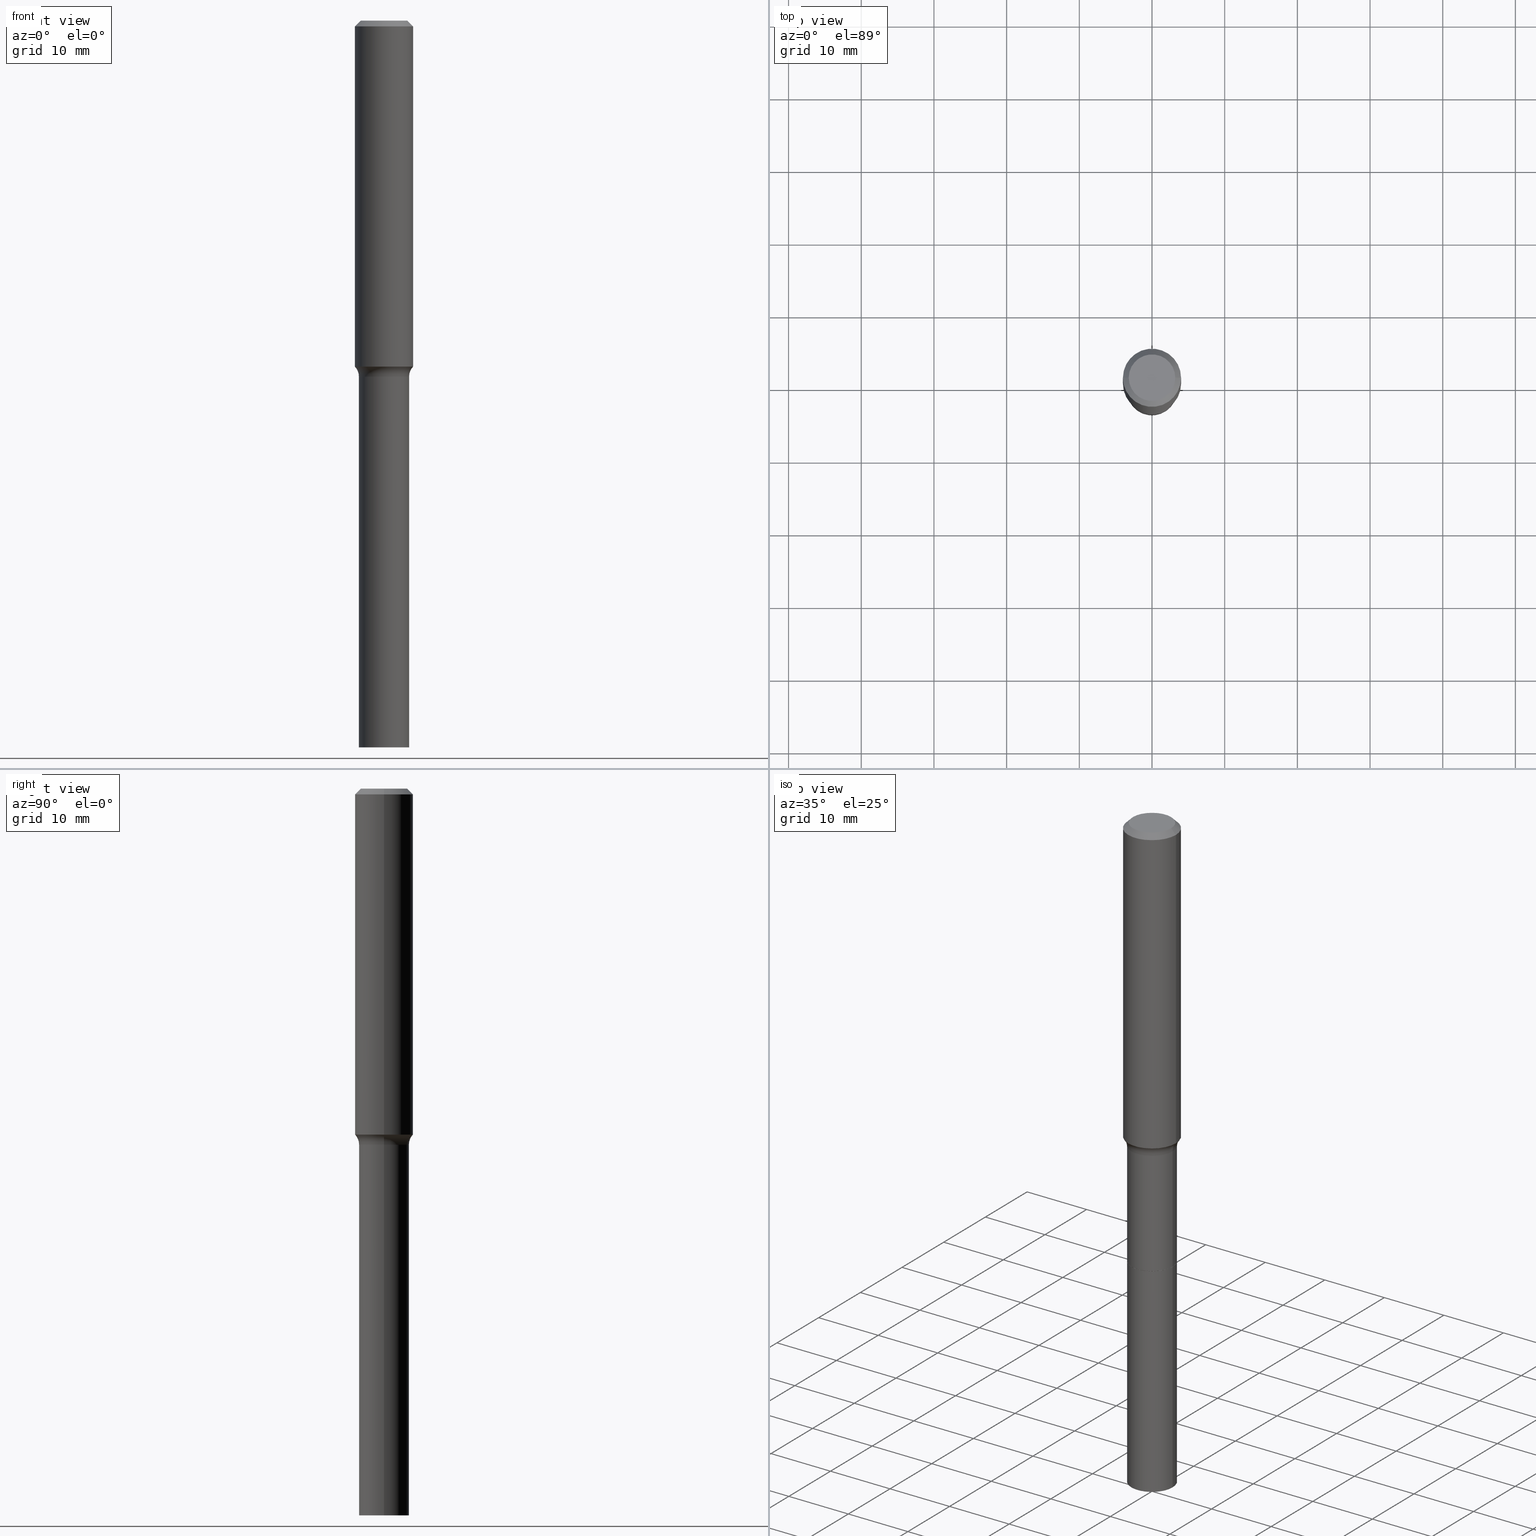
[diagram: canonical four-view strip — front | top / right | iso, engineering-drawing reading convention]
A machine part, canonical four-view strip (front | top / right | iso — engineering-drawing reading convention). The complete STEP part file that produces these views, byte-faithful:
ISO-10303-21;
HEADER;
FILE_DESCRIPTION (( 'STEP AP203' ),
    '1' );
FILE_NAME ('67856.STEP',
    '2025-04-01T15:31:43',
    ( '' ),
    ( '' ),
    'SwSTEP 2.0',
    'SolidWorks 2024',
    '' );
FILE_SCHEMA (( 'CONFIG_CONTROL_DESIGN' ));
ENDSEC;

DATA;
#1 = DIRECTION ( 'NONE',  ( 1.000000000000000000, 0.000000000000000000, 0.000000000000000000 ) ) ;
#2 = EDGE_LOOP ( 'NONE', ( #474, #445, #450, #211 ) ) ;
#3 = ORIENTED_EDGE ( 'NONE', *, *, #36, .F. ) ;
#4 = AXIS2_PLACEMENT_3D ( 'NONE', #124, #290, #285 ) ;
#5 = APPLICATION_CONTEXT ( 'configuration controlled 3d designs of mechanical parts and assemblies' ) ;
#6 = CONICAL_SURFACE ( 'NONE', #120, 0.1573417038704663373, 0.7504915783580670130 ) ;
#7 = ORIENTED_EDGE ( 'NONE', *, *, #435, .T. ) ;
#8 = CYLINDRICAL_SURFACE ( 'NONE', #76, 0.1358500000000001096 ) ;
#9 = CARTESIAN_POINT ( 'NONE',  ( 0.1358499999999999985, -1.008933362485503452E-14, -2.618000000000000327 ) ) ;
#10 = ADVANCED_FACE ( 'NONE', ( #48 ), #395, .T. ) ;
#11 = AXIS2_PLACEMENT_3D ( 'NONE', #331, #296, #359 ) ;
#12 = CARTESIAN_POINT ( 'NONE',  ( 6.402237334592687709E-29, -9.140698145091355562E-15, -2.618000000000000327 ) ) ;
#13 = APPROVAL_DATE_TIME ( #313, #483 ) ;
#14 = EDGE_LOOP ( 'NONE', ( #207, #245, #299, #488 ) ) ;
#15 = LOCAL_TIME ( 11, 31, 43.00000000000000000, #338 ) ;
#16 = FACE_OUTER_BOUND ( 'NONE', #405, .T. ) ;
#17 = EDGE_CURVE ( 'NONE', #291, #128, #329, .T. ) ;
#18 = DIRECTION ( 'NONE',  ( -2.445468806185136597E-29, 3.491481338843145583E-15, 1.000000000000000000 ) ) ;
#19 = EDGE_LOOP ( 'NONE', ( #118, #42, #401, #123 ) ) ;
#20 = CARTESIAN_POINT ( 'NONE',  ( 0.1575000000000002232, -7.643796675283027405E-15, -1.874270379378770057 ) ) ;
#21 = CARTESIAN_POINT ( 'NONE',  ( 4.717309327131129015E-29, -6.735067502628427403E-15, -1.929000000000000048 ) ) ;
#22 = CARTESIAN_POINT ( 'NONE',  ( 4.583469747127563786E-29, -6.543980053547438347E-15, -1.874270379378770057 ) ) ;
#23 = DATE_AND_TIME ( #216, #320 ) ;
#24 = DIRECTION ( 'NONE',  ( -2.445468806185136597E-29, 3.491481338843145583E-15, 1.000000000000000000 ) ) ;
#25 = SECURITY_CLASSIFICATION_LEVEL ( 'unclassified' ) ;
#26 = CC_DESIGN_APPROVAL ( #284, ( #347 ) ) ;
#27 = CARTESIAN_POINT ( 'NONE',  ( 4.583884869898947563E-29, -6.544572738846040132E-15, -1.874440131195000081 ) ) ;
#28 = DIRECTION ( 'NONE',  ( 1.000000000000000000, -6.982962677686265922E-15, 4.876281427513067258E-29 ) ) ;
#29 = CC_DESIGN_PERSON_AND_ORGANIZATION_ASSIGNMENT ( #306, #156, ( #49 ) ) ;
#30 = CIRCLE ( 'NONE', #11, 0.1353499999999999981 ) ;
#31 = DIRECTION ( 'NONE',  ( -2.445468806185136597E-29, 3.491481338843145583E-15, 1.000000000000000000 ) ) ;
#32 = CARTESIAN_POINT ( 'NONE',  ( 6.402237334592687709E-29, -9.140698145091355562E-15, -2.618000000000000327 ) ) ;
#33 = DIRECTION ( 'NONE',  ( -2.445468806185136597E-29, 3.491481338843145583E-15, 1.000000000000000000 ) ) ;
#34 = CARTESIAN_POINT ( 'NONE',  ( -0.1573417038704663373, -5.426592691673273375E-15, -1.874440131195000081 ) ) ;
#35 = AXIS2_PLACEMENT_3D ( 'NONE', #326, #441, #251 ) ;
#36 = EDGE_CURVE ( 'NONE', #393, #163, #30, .T. ) ;
#37 = PERSON_AND_ORGANIZATION ( #467, #200 ) ;
#38 = DATE_AND_TIME ( #425, #15 ) ;
#39 = APPLICATION_PROTOCOL_DEFINITION ( 'international standard', 'config_control_design', 1994, #109 ) ;
#40 = ADVANCED_FACE ( 'NONE', ( #96 ), #8, .T. ) ;
#41 = CARTESIAN_POINT ( 'NONE',  ( -0.1358499999999999985, -1.047805778152831320E-14, -2.618000000000000327 ) ) ;
#42 = ORIENTED_EDGE ( 'NONE', *, *, #197, .T. ) ;
#43 = AXIS2_PLACEMENT_3D ( 'NONE', #27, #62, #179 ) ;
#44 =( CONVERSION_BASED_UNIT ( 'INCH', #227 ) LENGTH_UNIT ( ) NAMED_UNIT ( #381 ) );
#45 = ORIENTED_EDGE ( 'NONE', *, *, #505, .T. ) ;
#46 = ORIENTED_EDGE ( 'NONE', *, *, #435, .F. ) ;
#47 = AXIS2_PLACEMENT_3D ( 'NONE', #165, #439, #86 ) ;
#48 = FACE_OUTER_BOUND ( 'NONE', #214, .T. ) ;
#49 = PRODUCT ( '67856', '67856', '', ( #468 ) ) ;
#50 = ORIENTED_EDGE ( 'NONE', *, *, #264, .F. ) ;
#51 = DIRECTION ( 'NONE',  ( 1.000000000000000000, -6.982962677686265922E-15, 4.876281427513067258E-29 ) ) ;
#52 = EDGE_LOOP ( 'NONE', ( #153, #317 ) ) ;
#53 = ADVANCED_FACE ( 'NONE', ( #282 ), #208, .F. ) ;
#54 = CIRCLE ( 'NONE', #373, 0.1575000000000000011 ) ;
#55 = ORIENTED_EDGE ( 'NONE', *, *, #344, .T. ) ;
#56 = APPROVAL_PERSON_ORGANIZATION ( #37, #483, #189 ) ;
#57 = UNCERTAINTY_MEASURE_WITH_UNIT (LENGTH_MEASURE( 1.000000000000000082E-05 ), #44, 'distance_accuracy_value', 'NONE');
#58 = DIRECTION ( 'NONE',  ( -0.7071067811868130271, 7.493145998871311837E-15, 0.7071067811862817853 ) ) ;
#59 = CARTESIAN_POINT ( 'NONE',  ( 0.1358499999999999153, -7.683702982392106364E-15, -1.929000000000000048 ) ) ;
#60 = EDGE_LOOP ( 'NONE', ( #481, #278, #55, #237 ) ) ;
#61 = CARTESIAN_POINT ( 'NONE',  ( -9.439721640706193907E-47, 1.347742071746725396E-32, 3.860086710912455880E-18 ) ) ;
#62 = DIRECTION ( 'NONE',  ( -2.445468806185136597E-29, 3.491481338843145583E-15, 1.000000000000000000 ) ) ;
#63 = DIRECTION ( 'NONE',  ( -2.445468806185136597E-29, 3.491481338843145583E-15, 1.000000000000000000 ) ) ;
#64 = APPROVAL_STATUS ( 'not_yet_approved' ) ;
#65 = PERSON_AND_ORGANIZATION_ROLE ( 'creator' ) ;
#66 = EDGE_CURVE ( 'NONE', #164, #117, #451, .T. ) ;
#67 = DIRECTION ( 'NONE',  ( 1.000000000000000000, -6.982962677686261189E-15, 0.000000000000000000 ) ) ;
#68 = EDGE_CURVE ( 'NONE', #393, #496, #407, .T. ) ;
#69 = CIRCLE ( 'NONE', #228, 0.1260000000000000009 ) ;
#70 = SECURITY_CLASSIFICATION ( '', '', #25 ) ;
#71 = CARTESIAN_POINT ( 'NONE',  ( -0.1358500000000001096, -8.175425838561259273E-15, -2.618000000000000327 ) ) ;
#72 = DIRECTION ( 'NONE',  ( 1.000000000000000000, -6.982962677686264344E-15, 4.883557194083111780E-29 ) ) ;
#73 = CARTESIAN_POINT ( 'NONE',  ( 4.583884869898947563E-29, -6.544572738846040132E-15, -1.874440131195000081 ) ) ;
#74 = CARTESIAN_POINT ( 'NONE',  ( -0.1358499999999999708, 9.652723065300958949E-16, -6.682373320111287681E-30 ) ) ;
#75 = PERSON_AND_ORGANIZATION ( #467, #200 ) ;
#76 = AXIS2_PLACEMENT_3D ( 'NONE', #12, #240, #472 ) ;
#77 = DIRECTION ( 'NONE',  ( 0.000000000000000000, 0.000000000000000000, 1.000000000000000000 ) ) ;
#78 = VERTEX_POINT ( 'NONE', #203 ) ;
#79 = CARTESIAN_POINT ( 'NONE',  ( -0.1575000000000000844, 1.119104808822158392E-15, -7.747322767151481189E-30 ) ) ;
#80 = EDGE_CURVE ( 'NONE', #117, #164, #406, .T. ) ;
#81 = ORIENTED_EDGE ( 'NONE', *, *, #383, .F. ) ;
#82 = AXIS2_PLACEMENT_3D ( 'NONE', #492, #449, #502 ) ;
#83 =( GEOMETRIC_REPRESENTATION_CONTEXT ( 3 ) GLOBAL_UNCERTAINTY_ASSIGNED_CONTEXT ( ( #57 ) ) GLOBAL_UNIT_ASSIGNED_CONTEXT ( ( #44, #428, #84 ) ) REPRESENTATION_CONTEXT ( 'NONE', 'WORKASPACE' ) );
#84 =( NAMED_UNIT ( * ) SI_UNIT ( $, .STERADIAN. ) SOLID_ANGLE_UNIT ( ) );
#85 = EDGE_LOOP ( 'NONE', ( #440, #333, #93, #192 ) ) ;
#86 = DIRECTION ( 'NONE',  ( 1.000000000000000000, -6.982962677686271444E-15, 0.000000000000000000 ) ) ;
#87 = VERTEX_POINT ( 'NONE', #9 ) ;
#88 = DIRECTION ( 'NONE',  ( -2.445468806185136597E-29, 3.491481338843145583E-15, 1.000000000000000000 ) ) ;
#89 = CC_DESIGN_SECURITY_CLASSIFICATION ( #70, ( #347 ) ) ;
#90 = ORIENTED_EDGE ( 'NONE', *, *, #403, .T. ) ;
#91 = PLANE ( 'NONE',  #252 ) ;
#92 = EDGE_LOOP ( 'NONE', ( #312, #99, #259, #125 ) ) ;
#93 = ORIENTED_EDGE ( 'NONE', *, *, #315, .T. ) ;
#94 = DIRECTION ( 'NONE',  ( 2.438088387897960049E-29, -3.491481338843145188E-15, -1.000000000000000000 ) ) ;
#95 = FACE_OUTER_BOUND ( 'NONE', #60, .T. ) ;
#96 = FACE_OUTER_BOUND ( 'NONE', #281, .T. ) ;
#97 = APPROVAL_ROLE ( '' ) ;
#98 = CARTESIAN_POINT ( 'NONE',  ( 7.703226739483235729E-31, -1.099816621735598771E-16, -0.03150000000000022921 ) ) ;
#99 = ORIENTED_EDGE ( 'NONE', *, *, #68, .T. ) ;
#100 = CARTESIAN_POINT ( 'NONE',  ( 7.703226739483235729E-31, -1.099816621735598771E-16, -0.03150000000000022921 ) ) ;
#101 = EDGE_CURVE ( 'NONE', #163, #393, #434, .T. ) ;
#102 = ADVANCED_FACE ( 'NONE', ( #16 ), #91, .T. ) ;
#103 = DIRECTION ( 'NONE',  ( 2.438088387897960049E-29, -3.491481338843145188E-15, -1.000000000000000000 ) ) ;
#104 = LINE ( 'NONE', #71, #121 ) ;
#105 = AXIS2_PLACEMENT_3D ( 'NONE', #330, #107, #67 ) ;
#106 = FACE_OUTER_BOUND ( 'NONE', #52, .T. ) ;
#107 = DIRECTION ( 'NONE',  ( -2.445468806185136597E-29, 3.491481338843145583E-15, 1.000000000000000000 ) ) ;
#108 = DIRECTION ( 'NONE',  ( 2.445468806185136597E-29, -3.491481338843145583E-15, -1.000000000000000000 ) ) ;
#109 = APPLICATION_CONTEXT ( 'configuration controlled 3d designs of mechanical parts and assemblies' ) ;
#110 = LINE ( 'NONE', #74, #243 ) ;
#111 = APPROVAL_DATE_TIME ( #23, #284 ) ;
#112 = CARTESIAN_POINT ( 'NONE',  ( -0.1575000000000000011, 9.898349595620270362E-16, -0.03150000000000022921 ) ) ;
#113 = CIRCLE ( 'NONE', #398, 0.1575000000000000011 ) ;
#114 = DIRECTION ( 'NONE',  ( 0.6819983600628680698, -2.208861293266259574E-15, 0.7313537016188258466 ) ) ;
#115 = PRODUCT_RELATED_PRODUCT_CATEGORY ( 'detail', '', ( #49 ) ) ;
#116 = DIRECTION ( 'NONE',  ( -2.445468806185136877E-29, 3.491481338843145188E-15, 1.000000000000000000 ) ) ;
#117 = VERTEX_POINT ( 'NONE', #362 ) ;
#118 = ORIENTED_EDGE ( 'NONE', *, *, #292, .T. ) ;
#119 = CIRCLE ( 'NONE', #461, 0.1260000000000000009 ) ;
#120 = AXIS2_PLACEMENT_3D ( 'NONE', #273, #270, #309 ) ;
#121 = VECTOR ( 'NONE', #337, 39.37007874015748143 ) ;
#122 = EDGE_CURVE ( 'NONE', #388, #436, #54, .T. ) ;
#123 = ORIENTED_EDGE ( 'NONE', *, *, #491, .F. ) ;
#124 = CARTESIAN_POINT ( 'NONE',  ( 4.583884869898947563E-29, -6.544572738846040132E-15, -1.874440131195000081 ) ) ;
#125 = ORIENTED_EDGE ( 'NONE', *, *, #403, .F. ) ;
#126 = AXIS2_PLACEMENT_3D ( 'NONE', #495, #452, #501 ) ;
#127 = FACE_OUTER_BOUND ( 'NONE', #19, .T. ) ;
#128 = VERTEX_POINT ( 'NONE', #248 ) ;
#129 = DIRECTION ( 'NONE',  ( -2.445468806185136597E-29, 3.491481338843145583E-15, 1.000000000000000000 ) ) ;
#130 = ADVANCED_FACE ( 'NONE', ( #499 ), #343, .T. ) ;
#131 = FACE_OUTER_BOUND ( 'NONE', #2, .T. ) ;
#132 = ORIENTED_EDGE ( 'NONE', *, *, #17, .T. ) ;
#133 = CARTESIAN_POINT ( 'NONE',  ( -0.1575000000000002232, -5.424875244725278377E-15, -1.874270379378770057 ) ) ;
#134 = VERTEX_POINT ( 'NONE', #224 ) ;
#135 = DATE_TIME_ROLE ( 'creation_date' ) ;
#136 = AXIS2_PLACEMENT_3D ( 'NONE', #295, #24, #180 ) ;
#137 = DIRECTION ( 'NONE',  ( 1.000000000000000000, -6.982962677686266711E-15, 0.000000000000000000 ) ) ;
#138 = ORIENTED_EDGE ( 'NONE', *, *, #357, .T. ) ;
#139 = ADVANCED_FACE ( 'NONE', ( #106 ), #301, .F. ) ;
#140 = CARTESIAN_POINT ( 'NONE',  ( 6.402237334592687709E-29, -9.140698145091355562E-15, -2.618000000000000327 ) ) ;
#141 = MANIFOLD_SOLID_BREP ( 'Body-Move/Copy2[1]', #490 ) ;
#142 = FACE_OUTER_BOUND ( 'NONE', #363, .T. ) ;
#143 = CC_DESIGN_PERSON_AND_ORGANIZATION_ASSIGNMENT ( #500, #149, ( #347 ) ) ;
#144 = CYLINDRICAL_SURFACE ( 'NONE', #194, 0.1575000000000000844 ) ;
#145 = DIRECTION ( 'NONE',  ( -0.6819983600628680698, 7.399397606725709681E-15, 0.7313537016188258466 ) ) ;
#146 = DATE_TIME_ROLE ( 'classification_date' ) ;
#147 = LINE ( 'NONE', #380, #154 ) ;
#148 = TOROIDAL_SURFACE ( 'NONE', #510, 0.2158499999999999031, 0.08000000000000007105 ) ;
#149 = PERSON_AND_ORGANIZATION_ROLE ( 'design_supplier' ) ;
#150 = LOCAL_TIME ( 11, 31, 43.00000000000000000, #351 ) ;
#151 = DIRECTION ( 'NONE',  ( -2.445468806185136597E-29, 3.491481338843145583E-15, 1.000000000000000000 ) ) ;
#152 =( LENGTH_UNIT ( ) NAMED_UNIT ( * ) SI_UNIT ( $, .METRE. ) );
#153 = ORIENTED_EDGE ( 'NONE', *, *, #414, .T. ) ;
#154 = VECTOR ( 'NONE', #413, 39.37007874015748143 ) ;
#155 = ORIENTED_EDGE ( 'NONE', *, *, #212, .F. ) ;
#156 = PERSON_AND_ORGANIZATION_ROLE ( 'design_owner' ) ;
#157 = EDGE_LOOP ( 'NONE', ( #81, #518, #7, #132 ) ) ;
#158 = ORIENTED_EDGE ( 'NONE', *, *, #17, .F. ) ;
#159 = AXIS2_PLACEMENT_3D ( 'NONE', #246, #88, #205 ) ;
#160 = AXIS2_PLACEMENT_3D ( 'NONE', #457, #103, #378 ) ;
#161 = CARTESIAN_POINT ( 'NONE',  ( -9.439721640706193907E-47, 1.347742071746725396E-32, 3.860086710912455880E-18 ) ) ;
#162 = CC_DESIGN_DATE_AND_TIME_ASSIGNMENT ( #229, #146, ( #70 ) ) ;
#163 = VERTEX_POINT ( 'NONE', #376 ) ;
#164 = VERTEX_POINT ( 'NONE', #411 ) ;
#165 = CARTESIAN_POINT ( 'NONE',  ( 4.583469747127563786E-29, -6.543980053547438347E-15, -1.874270379378770057 ) ) ;
#166 = ORIENTED_EDGE ( 'NONE', *, *, #371, .T. ) ;
#167 = ADVANCED_FACE ( 'NONE', ( #219 ), #168, .T. ) ;
#168 = CONICAL_SURFACE ( 'NONE', #345, 0.1575000000000000011, 0.7853981633974445042 ) ;
#169 = CC_DESIGN_APPROVAL ( #423, ( #70 ) ) ;
#170 = ORIENTED_EDGE ( 'NONE', *, *, #174, .F. ) ;
#171 = DIRECTION ( 'NONE',  ( 1.000000000000000000, -6.982962677686265133E-15, 4.876176775795935232E-29 ) ) ;
#172 = DIRECTION ( 'NONE',  ( -2.445468806185136597E-29, 3.491481338843145583E-15, 1.000000000000000000 ) ) ;
#173 = DIRECTION ( 'NONE',  ( -2.445468806185136597E-29, 3.491481338843145583E-15, 1.000000000000000000 ) ) ;
#174 = EDGE_CURVE ( 'NONE', #134, #239, #119, .T. ) ;
#175 = CYLINDRICAL_SURFACE ( 'NONE', #310, 0.1575000000000000844 ) ;
#176 = DIRECTION ( 'NONE',  ( 1.000000000000000000, -6.982962677686265133E-15, 0.000000000000000000 ) ) ;
#177 = DIRECTION ( 'NONE',  ( -2.445468806185136597E-29, 3.491481338843145583E-15, 1.000000000000000000 ) ) ;
#178 = CIRCLE ( 'NONE', #136, 0.1358499999999999985 ) ;
#179 = DIRECTION ( 'NONE',  ( 1.000000000000000000, -6.982962677686266711E-15, 0.000000000000000000 ) ) ;
#180 = DIRECTION ( 'NONE',  ( 1.000000000000000000, -6.982962677686261189E-15, 0.000000000000000000 ) ) ;
#181 = DIRECTION ( 'NONE',  ( -2.445468806185136597E-29, 3.491481338843145583E-15, 1.000000000000000000 ) ) ;
#182 = DIRECTION ( 'NONE',  ( 1.000000000000000000, -6.982962677686264344E-15, 4.883557194083111780E-29 ) ) ;
#183 = FACE_OUTER_BOUND ( 'NONE', #92, .T. ) ;
#184 = LINE ( 'NONE', #79, #462 ) ;
#185 = VECTOR ( 'NONE', #58, 39.37007874015748854 ) ;
#186 = VECTOR ( 'NONE', #464, 39.37007874015748854 ) ;
#187 = CARTESIAN_POINT ( 'NONE',  ( 0.1358500000000001096, -1.008933362485503610E-14, -2.618000000000000327 ) ) ;
#188 = APPROVAL_DATE_TIME ( #38, #423 ) ;
#189 = APPROVAL_ROLE ( '' ) ;
#190 = ADVANCED_FACE ( 'NONE', ( #266 ), #148, .F. ) ;
#191 = CARTESIAN_POINT ( 'NONE',  ( 0.1575000000000000011, -1.209798283909146938E-15, -0.03150000000000022921 ) ) ;
#192 = ORIENTED_EDGE ( 'NONE', *, *, #505, .F. ) ;
#193 = AXIS2_PLACEMENT_3D ( 'NONE', #226, #255, #508 ) ;
#194 = AXIS2_PLACEMENT_3D ( 'NONE', #342, #332, #265 ) ;
#195 = CARTESIAN_POINT ( 'NONE',  ( 0.1573417038704663373, -7.643283984617071826E-15, -1.874440131195000081 ) ) ;
#196 = EDGE_LOOP ( 'NONE', ( #254, #3 ) ) ;
#197 = EDGE_CURVE ( 'NONE', #396, #361, #503, .T. ) ;
#198 = PRODUCT_DEFINITION_SHAPE ( 'NONE', 'NONE',  #206 ) ;
#199 = EDGE_LOOP ( 'NONE', ( #166, #328, #158, #399 ) ) ;
#200 = ORGANIZATION ( 'UNSPECIFIED', 'UNSPECIFIED', '' ) ;
#201 = DIRECTION ( 'NONE',  ( -2.445468806185136597E-29, 3.491481338843145583E-15, 1.000000000000000000 ) ) ;
#202 = DIRECTION ( 'NONE',  ( 1.000000000000000000, -6.982962677686265133E-15, 0.000000000000000000 ) ) ;
#203 = CARTESIAN_POINT ( 'NONE',  ( 0.1358499999999999985, -1.008758788418561223E-14, -2.617500000000000160 ) ) ;
#204 = DIRECTION ( 'NONE',  ( -2.445468806185136597E-29, 3.491481338843145583E-15, 1.000000000000000000 ) ) ;
#205 = DIRECTION ( 'NONE',  ( 1.000000000000000000, -6.982962677686262766E-15, 0.000000000000000000 ) ) ;
#206 = PRODUCT_DEFINITION ( 'UNKNOWN', '', #347, #389 ) ;
#207 = ORIENTED_EDGE ( 'NONE', *, *, #232, .T. ) ;
#208 = PLANE ( 'NONE',  #35 ) ;
#209 = CONICAL_SURFACE ( 'NONE', #279, 0.1353499999999999981, 0.7853981633978239785 ) ;
#210 = COORDINATED_UNIVERSAL_TIME_OFFSET ( 5, 0, .BEHIND. ) ;
#211 = ORIENTED_EDGE ( 'NONE', *, *, #283, .F. ) ;
#212 = EDGE_CURVE ( 'NONE', #117, #87, #379, .T. ) ;
#213 = DIRECTION ( 'NONE',  ( -2.445468806185136597E-29, 3.491481338843145583E-15, 1.000000000000000000 ) ) ;
#214 = EDGE_LOOP ( 'NONE', ( #325, #286, #90, #410 ) ) ;
#215 = DIRECTION ( 'NONE',  ( 1.000000000000000000, -6.982962677686261189E-15, 0.000000000000000000 ) ) ;
#216 = CALENDAR_DATE ( 2025, 1, 4 ) ;
#217 = EDGE_CURVE ( 'NONE', #485, #87, #262, .T. ) ;
#218 = CARTESIAN_POINT ( 'NONE',  ( -0.1575000000000000011, -2.207876049038340116E-15, -0.03150000000000022921 ) ) ;
#219 = FACE_OUTER_BOUND ( 'NONE', #85, .T. ) ;
#220 = CALENDAR_DATE ( 2025, 1, 4 ) ;
#221 = AXIS2_PLACEMENT_3D ( 'NONE', #298, #340, #261 ) ;
#222 = PLANE ( 'NONE',  #160 ) ;
#223 = DIRECTION ( 'NONE',  ( 1.000000000000000000, -6.982962677686265922E-15, 0.000000000000000000 ) ) ;
#224 = CARTESIAN_POINT ( 'NONE',  ( -0.1260000000000000009, 9.348441284752482932E-16, 3.860086710906110326E-18 ) ) ;
#225 = DIRECTION ( 'NONE',  ( -2.445468806185136597E-29, 3.491481338843145583E-15, 1.000000000000000000 ) ) ;
#226 = CARTESIAN_POINT ( 'NONE',  ( 6.402237334592687709E-29, -9.140698145091355562E-15, -2.618000000000000327 ) ) ;
#227 = LENGTH_MEASURE_WITH_UNIT ( LENGTH_MEASURE( 0.02539999999999999897 ), #152 );
#228 = AXIS2_PLACEMENT_3D ( 'NONE', #161, #201, #51 ) ;
#229 = DATE_AND_TIME ( #268, #311 ) ;
#230 = ADVANCED_FACE ( 'NONE', ( #183 ), #209, .T. ) ;
#231 = APPROVAL_STATUS ( 'not_yet_approved' ) ;
#232 = EDGE_CURVE ( 'NONE', #314, #361, #346, .T. ) ;
#233 = ORIENTED_EDGE ( 'NONE', *, *, #414, .F. ) ;
#234 = EDGE_LOOP ( 'NONE', ( #469, #138, #493, #50 ) ) ;
#235 = VECTOR ( 'NONE', #145, 39.37007874015748143 ) ;
#236 = FACE_OUTER_BOUND ( 'NONE', #234, .T. ) ;
#237 = ORIENTED_EDGE ( 'NONE', *, *, #122, .F. ) ;
#238 = AXIS2_PLACEMENT_3D ( 'NONE', #21, #204, #176 ) ;
#239 = VERTEX_POINT ( 'NONE', #300 ) ;
#240 = DIRECTION ( 'NONE',  ( -2.445468806185136597E-29, 3.491481338843145583E-15, 1.000000000000000000 ) ) ;
#241 = EDGE_LOOP ( 'NONE', ( #319, #369, #233, #155 ) ) ;
#242 = CIRCLE ( 'NONE', #297, 0.1573417038704663373 ) ;
#243 = VECTOR ( 'NONE', #354, 39.37007874015748143 ) ;
#244 = ADVANCED_FACE ( 'NONE', ( #454 ), #484, .T. ) ;
#245 = ORIENTED_EDGE ( 'NONE', *, *, #482, .T. ) ;
#246 = CARTESIAN_POINT ( 'NONE',  ( 9.627810689950883669E-29, -1.374596203102546341E-14, -3.937000000000000277 ) ) ;
#247 = ORIENTED_EDGE ( 'NONE', *, *, #80, .F. ) ;
#248 = CARTESIAN_POINT ( 'NONE',  ( -0.1358499999999999153, -6.971737646995084047E-15, -1.929000000000000048 ) ) ;
#249 = CYLINDRICAL_SURFACE ( 'NONE', #358, 0.1358499999999999708 ) ;
#250 = ORIENTED_EDGE ( 'NONE', *, *, #66, .T. ) ;
#251 = DIRECTION ( 'NONE',  ( 1.000000000000000000, -6.982962677686265922E-15, 4.876176775795935793E-29 ) ) ;
#252 = AXIS2_PLACEMENT_3D ( 'NONE', #448, #94, #402 ) ;
#253 = CARTESIAN_POINT ( 'NONE',  ( -0.1573417038704663651, -5.426592691673271008E-15, -1.874440131195000081 ) ) ;
#254 = ORIENTED_EDGE ( 'NONE', *, *, #101, .F. ) ;
#255 = DIRECTION ( 'NONE',  ( -2.445468806185136597E-29, 3.491481338843145583E-15, 1.000000000000000000 ) ) ;
#256 = COORDINATED_UNIVERSAL_TIME_OFFSET ( 5, 0, .BEHIND. ) ;
#257 = EDGE_CURVE ( 'NONE', #239, #134, #69, .T. ) ;
#258 = CARTESIAN_POINT ( 'NONE',  ( 0.000000000000000000, 0.000000000000000000, 0.000000000000000000 ) ) ;
#259 = ORIENTED_EDGE ( 'NONE', *, *, #371, .F. ) ;
#260 = DIRECTION ( 'NONE',  ( 2.445468806185136597E-29, -3.491481338843145583E-15, -1.000000000000000000 ) ) ;
#261 = DIRECTION ( 'NONE',  ( 1.000000000000000000, -6.982962677686265133E-15, 4.876176775795935232E-29 ) ) ;
#262 = CIRCLE ( 'NONE', #271, 0.1358499999999999985 ) ;
#263 = DIRECTION ( 'NONE',  ( -2.445468806185136597E-29, 3.491481338843145583E-15, 1.000000000000000000 ) ) ;
#264 = EDGE_CURVE ( 'NONE', #361, #314, #417, .T. ) ;
#265 = DIRECTION ( 'NONE',  ( 1.000000000000000000, -6.982962677686267499E-15, 4.876176775795936353E-29 ) ) ;
#266 = FACE_OUTER_BOUND ( 'NONE', #350, .T. ) ;
#267 = CARTESIAN_POINT ( 'NONE',  ( -0.1358499999999999985, -6.971737646995084047E-15, -2.617500000000000160 ) ) ;
#268 = CALENDAR_DATE ( 2025, 1, 4 ) ;
#269 = ADVANCED_FACE ( 'NONE', ( #127 ), #426, .T. ) ;
#270 = DIRECTION ( 'NONE',  ( -2.445468806185136597E-29, 3.491481338843145583E-15, 1.000000000000000000 ) ) ;
#271 = AXIS2_PLACEMENT_3D ( 'NONE', #32, #63, #215 ) ;
#272 = AXIS2_PLACEMENT_3D ( 'NONE', #470, #275, #316 ) ;
#273 = CARTESIAN_POINT ( 'NONE',  ( 4.583884869898947563E-29, -6.544572738846040132E-15, -1.874440131195000081 ) ) ;
#274 = EDGE_LOOP ( 'NONE', ( #323, #170, #45, #471 ) ) ;
#275 = DIRECTION ( 'NONE',  ( -6.982962677686266711E-15, -1.000000000000000000, 3.491481338843145583E-15 ) ) ;
#276 = CARTESIAN_POINT ( 'NONE',  ( 0.1575000000000000011, -1.190510096822576223E-15, -0.03150000000000022921 ) ) ;
#277 = ADVANCED_FACE ( 'NONE', ( #131 ), #249, .T. ) ;
#278 = ORIENTED_EDGE ( 'NONE', *, *, #264, .T. ) ;
#279 = AXIS2_PLACEMENT_3D ( 'NONE', #370, #151, #308 ) ;
#280 = VECTOR ( 'NONE', #114, 39.37007874015748143 ) ;
#281 = EDGE_LOOP ( 'NONE', ( #479, #250, #453, #515 ) ) ;
#282 = FACE_OUTER_BOUND ( 'NONE', #196, .T. ) ;
#283 = EDGE_CURVE ( 'NONE', #128, #291, #303, .T. ) ;
#284 = APPROVAL ( #397, 'UNSPECIFIED' ) ;
#285 = DIRECTION ( 'NONE',  ( 1.000000000000000000, -6.982962677686266711E-15, 0.000000000000000000 ) ) ;
#286 = ORIENTED_EDGE ( 'NONE', *, *, #36, .T. ) ;
#287 = DIRECTION ( 'NONE',  ( 1.000000000000000000, -6.982962677686265133E-15, 0.000000000000000000 ) ) ;
#288 = CIRCLE ( 'NONE', #43, 0.1573417038704663373 ) ;
#289 = CC_DESIGN_APPROVAL ( #483, ( #206 ) ) ;
#290 = DIRECTION ( 'NONE',  ( -2.445468806185136597E-29, 3.491481338843145583E-15, 1.000000000000000000 ) ) ;
#291 = VERTEX_POINT ( 'NONE', #59 ) ;
#292 = EDGE_CURVE ( 'NONE', #432, #396, #242, .T. ) ;
#293 = ORIENTED_EDGE ( 'NONE', *, *, #66, .F. ) ;
#294 = CARTESIAN_POINT ( 'NONE',  ( 6.402237334592686588E-29, -9.140698145091353984E-15, -2.617999999999999883 ) ) ;
#295 = CARTESIAN_POINT ( 'NONE',  ( 6.401014600189594908E-29, -9.138952404421933270E-15, -2.617500000000000160 ) ) ;
#296 = DIRECTION ( 'NONE',  ( -2.445468806185136597E-29, 3.491481338843145583E-15, 1.000000000000000000 ) ) ;
#297 = AXIS2_PLACEMENT_3D ( 'NONE', #73, #263, #137 ) ;
#298 = CARTESIAN_POINT ( 'NONE',  ( 0.000000000000000000, 0.000000000000000000, 0.000000000000000000 ) ) ;
#299 = ORIENTED_EDGE ( 'NONE', *, *, #315, .F. ) ;
#300 = CARTESIAN_POINT ( 'NONE',  ( 0.1260000000000000009, -1.027466422270894640E-15, 3.860086710919124220E-18 ) ) ;
#301 = PLANE ( 'NONE',  #318 ) ;
#302 = CARTESIAN_POINT ( 'NONE',  ( -0.1353499999999999981, -8.176329325065948970E-15, -2.617999999999999883 ) ) ;
#303 = CIRCLE ( 'NONE', #335, 0.1358499999999999153 ) ;
#304 = FACE_OUTER_BOUND ( 'NONE', #157, .T. ) ;
#305 = CARTESIAN_POINT ( 'NONE',  ( 7.703226739483235729E-31, -1.099816621735598771E-16, -0.03150000000000022921 ) ) ;
#306 = PERSON_AND_ORGANIZATION ( #467, #200 ) ;
#307 = EDGE_CURVE ( 'NONE', #496, #78, #178, .T. ) ;
#308 = DIRECTION ( 'NONE',  ( 1.000000000000000000, -6.982962677686265133E-15, 0.000000000000000000 ) ) ;
#309 = DIRECTION ( 'NONE',  ( 1.000000000000000000, -6.982962677686266711E-15, 0.000000000000000000 ) ) ;
#310 = AXIS2_PLACEMENT_3D ( 'NONE', #258, #213, #368 ) ;
#311 = LOCAL_TIME ( 11, 31, 43.00000000000000000, #377 ) ;
#312 = ORIENTED_EDGE ( 'NONE', *, *, #101, .T. ) ;
#313 = DATE_AND_TIME ( #349, #150 ) ;
#314 = VERTEX_POINT ( 'NONE', #20 ) ;
#315 = EDGE_CURVE ( 'NONE', #436, #388, #113, .T. ) ;
#316 = DIRECTION ( 'NONE',  ( 1.000000000000000000, -6.982962677686277755E-15, 0.000000000000000000 ) ) ;
#317 = ORIENTED_EDGE ( 'NONE', *, *, #217, .T. ) ;
#318 = AXIS2_PLACEMENT_3D ( 'NONE', #140, #416, #460 ) ;
#319 = ORIENTED_EDGE ( 'NONE', *, *, #80, .T. ) ;
#320 = LOCAL_TIME ( 11, 31, 43.00000000000000000, #256 ) ;
#321 = ADVANCED_FACE ( 'NONE', ( #507 ), #419, .T. ) ;
#322 = ORIENTED_EDGE ( 'NONE', *, *, #257, .T. ) ;
#323 = ORIENTED_EDGE ( 'NONE', *, *, #430, .F. ) ;
#324 = ADVANCED_FACE ( 'NONE', ( #463 ), #175, .T. ) ;
#325 = ORIENTED_EDGE ( 'NONE', *, *, #68, .F. ) ;
#326 = CARTESIAN_POINT ( 'NONE',  ( 1.378191901567385214E-28, 1.427426047613545805E-15, -2.618000000000000327 ) ) ;
#327 = CIRCLE ( 'NONE', #105, 0.1358499999999999985 ) ;
#328 = ORIENTED_EDGE ( 'NONE', *, *, #444, .T. ) ;
#329 = CIRCLE ( 'NONE', #238, 0.1358499999999999153 ) ;
#330 = CARTESIAN_POINT ( 'NONE',  ( 6.401014600189594908E-29, -9.138952404421933270E-15, -2.617500000000000160 ) ) ;
#331 = CARTESIAN_POINT ( 'NONE',  ( 6.402237334592686588E-29, -9.140698145091353984E-15, -2.617999999999999883 ) ) ;
#332 = DIRECTION ( 'NONE',  ( -2.445468806185136597E-29, 3.491481338843145583E-15, 1.000000000000000000 ) ) ;
#333 = ORIENTED_EDGE ( 'NONE', *, *, #430, .T. ) ;
#334 = DIRECTION ( 'NONE',  ( 1.000000000000000000, -6.982962677686271444E-15, 0.000000000000000000 ) ) ;
#335 = AXIS2_PLACEMENT_3D ( 'NONE', #477, #225, #375 ) ;
#336 = APPROVAL_PERSON_ORGANIZATION ( #437, #284, #97 ) ;
#337 = DIRECTION ( 'NONE',  ( -2.445468806185136877E-29, 3.491481338843145188E-15, 1.000000000000000000 ) ) ;
#338 = COORDINATED_UNIVERSAL_TIME_OFFSET ( 5, 0, .BEHIND. ) ;
#339 = CC_DESIGN_PERSON_AND_ORGANIZATION_ASSIGNMENT ( #75, #341, ( #347 ) ) ;
#340 = DIRECTION ( 'NONE',  ( -2.445468806185136597E-29, 3.491481338843145583E-15, 1.000000000000000000 ) ) ;
#341 = PERSON_AND_ORGANIZATION_ROLE ( 'creator' ) ;
#342 = CARTESIAN_POINT ( 'NONE',  ( 0.000000000000000000, 0.000000000000000000, 0.000000000000000000 ) ) ;
#343 = CYLINDRICAL_SURFACE ( 'NONE', #193, 0.1358500000000001096 ) ;
#344 = EDGE_CURVE ( 'NONE', #314, #436, #147, .T. ) ;
#345 = AXIS2_PLACEMENT_3D ( 'NONE', #305, #108, #348 ) ;
#346 = CIRCLE ( 'NONE', #517, 0.1575000000000002232 ) ;
#347 = PRODUCT_DEFINITION_FORMATION_WITH_SPECIFIED_SOURCE ( 'ANY', '', #49, .NOT_KNOWN. ) ;
#348 = DIRECTION ( 'NONE',  ( -1.000000000000000000, 6.982962677686265922E-15, 0.000000000000000000 ) ) ;
#349 = CALENDAR_DATE ( 2025, 1, 4 ) ;
#350 = EDGE_LOOP ( 'NONE', ( #478, #443, #447, #46 ) ) ;
#351 = COORDINATED_UNIVERSAL_TIME_OFFSET ( 5, 0, .BEHIND. ) ;
#352 = TOROIDAL_SURFACE ( 'NONE', #442, 0.2158499999999999031, 0.08000000000000007105 ) ;
#353 = ADVANCED_FACE ( 'NONE', ( #304 ), #352, .F. ) ;
#354 = DIRECTION ( 'NONE',  ( -2.445468806185136877E-29, 3.491481338843145188E-15, 1.000000000000000000 ) ) ;
#355 = CLOSED_SHELL ( 'NONE', ( #230, #167, #324, #269, #190, #321, #277, #353, #513, #387, #244, #429, #53, #10 ) ) ;
#356 = PERSON_AND_ORGANIZATION ( #467, #200 ) ;
#357 = EDGE_CURVE ( 'NONE', #396, #432, #288, .T. ) ;
#358 = AXIS2_PLACEMENT_3D ( 'NONE', #366, #18, #171 ) ;
#359 = DIRECTION ( 'NONE',  ( 1.000000000000000000, -6.982962677686265133E-15, 0.000000000000000000 ) ) ;
#360 = CARTESIAN_POINT ( 'NONE',  ( 9.627810689950883669E-29, -1.374596203102546341E-14, -3.937000000000000277 ) ) ;
#361 = VERTEX_POINT ( 'NONE', #133 ) ;
#362 = CARTESIAN_POINT ( 'NONE',  ( 0.1358500000000002483, -1.469459751078914395E-14, -3.937000000000000277 ) ) ;
#363 = EDGE_LOOP ( 'NONE', ( #404, #322 ) ) ;
#364 = CARTESIAN_POINT ( 'NONE',  ( -0.1353499999999999981, -8.178978552240059382E-15, -2.617999999999999883 ) ) ;
#365 = AXIS2_PLACEMENT_3D ( 'NONE', #294, #489, #287 ) ;
#366 = CARTESIAN_POINT ( 'NONE',  ( 0.000000000000000000, 0.000000000000000000, 0.000000000000000000 ) ) ;
#367 = CARTESIAN_POINT ( 'NONE',  ( 6.402237334592686588E-29, -9.140698145091353984E-15, -2.617999999999999883 ) ) ;
#368 = DIRECTION ( 'NONE',  ( 1.000000000000000000, -6.982962677686267499E-15, 4.876176775795936353E-29 ) ) ;
#369 = ORIENTED_EDGE ( 'NONE', *, *, #412, .T. ) ;
#370 = CARTESIAN_POINT ( 'NONE',  ( 6.402237334592686588E-29, -9.140698145091353984E-15, -2.617999999999999883 ) ) ;
#371 = EDGE_CURVE ( 'NONE', #78, #496, #327, .T. ) ;
#372 = CARTESIAN_POINT ( 'NONE',  ( 0.1353499999999999981, -1.008584214351618994E-14, -2.617999999999999883 ) ) ;
#373 = AXIS2_PLACEMENT_3D ( 'NONE', #487, #129, #446 ) ;
#374 = DATE_AND_TIME ( #220, #427 ) ;
#375 = DIRECTION ( 'NONE',  ( 1.000000000000000000, -6.982962677686265133E-15, 0.000000000000000000 ) ) ;
#376 = CARTESIAN_POINT ( 'NONE',  ( 0.1353499999999999981, -1.008584214351618994E-14, -2.617999999999999883 ) ) ;
#377 = COORDINATED_UNIVERSAL_TIME_OFFSET ( 5, 0, .BEHIND. ) ;
#378 = DIRECTION ( 'NONE',  ( -1.000000000000000000, 6.982962677686265922E-15, -4.876176775795935793E-29 ) ) ;
#379 = LINE ( 'NONE', #187, #475 ) ;
#380 = CARTESIAN_POINT ( 'NONE',  ( 0.1575000000000000844, -1.099816621735587677E-15, 7.679978421878603638E-30 ) ) ;
#381 = DIMENSIONAL_EXPONENTS ( 1.000000000000000000, 0.000000000000000000, 0.000000000000000000, 0.000000000000000000, 0.000000000000000000, 0.000000000000000000, 0.000000000000000000 ) ;
#382 = AXIS2_PLACEMENT_3D ( 'NONE', #100, #260, #384 ) ;
#383 = EDGE_CURVE ( 'NONE', #396, #128, #391, .T. ) ;
#384 = DIRECTION ( 'NONE',  ( -1.000000000000000000, 6.982962677686265922E-15, 0.000000000000000000 ) ) ;
#385 = PERSON_AND_ORGANIZATION_ROLE ( 'classification_officer' ) ;
#386 = CARTESIAN_POINT ( 'NONE',  ( 0.000000000000000000, 0.000000000000000000, 0.000000000000000000 ) ) ;
#387 = ADVANCED_FACE ( 'NONE', ( #95 ), #144, .T. ) ;
#388 = VERTEX_POINT ( 'NONE', #218 ) ;
#389 = DESIGN_CONTEXT ( 'detailed design', #109, 'design' ) ;
#390 = APPLICATION_PROTOCOL_DEFINITION ( 'international standard', 'config_control_design', 1994, #5 ) ;
#391 = CIRCLE ( 'NONE', #82, 0.08000000000000007105 ) ;
#392 = VECTOR ( 'NONE', #409, 39.37007874015748854 ) ;
#393 = VERTEX_POINT ( 'NONE', #302 ) ;
#394 = CARTESIAN_POINT ( 'NONE',  ( 0.1358499999999999708, -9.486354797636789603E-16, 6.624286149918776493E-30 ) ) ;
#395 = CONICAL_SURFACE ( 'NONE', #465, 0.1353499999999999981, 0.7853981633978239785 ) ;
#396 = VERTEX_POINT ( 'NONE', #253 ) ;
#397 = APPROVAL_STATUS ( 'not_yet_approved' ) ;
#398 = AXIS2_PLACEMENT_3D ( 'NONE', #98, #31, #223 ) ;
#399 = ORIENTED_EDGE ( 'NONE', *, *, #516, .F. ) ;
#400 = VECTOR ( 'NONE', #116, 39.37007874015748143 ) ;
#401 = ORIENTED_EDGE ( 'NONE', *, *, #232, .F. ) ;
#402 = DIRECTION ( 'NONE',  ( -1.000000000000000000, 6.982962677686265922E-15, -4.876176775795935793E-29 ) ) ;
#403 = EDGE_CURVE ( 'NONE', #163, #78, #459, .T. ) ;
#404 = ORIENTED_EDGE ( 'NONE', *, *, #174, .T. ) ;
#405 = EDGE_LOOP ( 'NONE', ( #247, #293 ) ) ;
#406 = CIRCLE ( 'NONE', #498, 0.1358500000000002483 ) ;
#407 = LINE ( 'NONE', #364, #185 ) ;
#408 = APPROVAL_PERSON_ORGANIZATION ( #509, #423, #455 ) ;
#409 = DIRECTION ( 'NONE',  ( 0.7071067811868130271, -2.468850131085038979E-15, 0.7071067811862817853 ) ) ;
#410 = ORIENTED_EDGE ( 'NONE', *, *, #307, .F. ) ;
#411 = CARTESIAN_POINT ( 'NONE',  ( -0.1358500000000002483, -1.047805778152831162E-14, -3.937000000000000277 ) ) ;
#412 = EDGE_CURVE ( 'NONE', #164, #485, #104, .T. ) ;
#413 = DIRECTION ( 'NONE',  ( -2.445468806185136877E-29, 3.491481338843145188E-15, 1.000000000000000000 ) ) ;
#414 = EDGE_CURVE ( 'NONE', #87, #485, #511, .T. ) ;
#415 = CARTESIAN_POINT ( 'NONE',  ( 4.717309327131129015E-29, -6.735067502628427403E-15, -1.929000000000000048 ) ) ;
#416 = DIRECTION ( 'NONE',  ( 2.438088387897960049E-29, -3.491481338843145188E-15, -1.000000000000000000 ) ) ;
#417 = CIRCLE ( 'NONE', #47, 0.1575000000000002232 ) ;
#418 = CIRCLE ( 'NONE', #272, 0.08000000000000007105 ) ;
#419 = CYLINDRICAL_SURFACE ( 'NONE', #221, 0.1358499999999999708 ) ;
#420 = DIRECTION ( 'NONE',  ( -2.445468806185136597E-29, 3.491481338843145583E-15, 1.000000000000000000 ) ) ;
#421 = SHAPE_DEFINITION_REPRESENTATION ( #198, #497 ) ;
#422 = LINE ( 'NONE', #276, #186 ) ;
#423 = APPROVAL ( #64, 'UNSPECIFIED' ) ;
#424 = LINE ( 'NONE', #112, #486 ) ;
#425 = CALENDAR_DATE ( 2025, 1, 4 ) ;
#426 = CONICAL_SURFACE ( 'NONE', #4, 0.1573417038704663373, 0.7504915783580670130 ) ;
#427 = LOCAL_TIME ( 11, 31, 43.00000000000000000, #210 ) ;
#428 =( NAMED_UNIT ( * ) PLANE_ANGLE_UNIT ( ) SI_UNIT ( $, .RADIAN. ) );
#429 = ADVANCED_FACE ( 'NONE', ( #142 ), #222, .F. ) ;
#430 = EDGE_CURVE ( 'NONE', #239, #436, #422, .T. ) ;
#431 = LINE ( 'NONE', #394, #400 ) ;
#432 = VERTEX_POINT ( 'NONE', #433 ) ;
#433 = CARTESIAN_POINT ( 'NONE',  ( 0.1573417038704663651, -7.643283984617071826E-15, -1.874440131195000081 ) ) ;
#434 = CIRCLE ( 'NONE', #365, 0.1353499999999999981 ) ;
#435 = EDGE_CURVE ( 'NONE', #432, #291, #418, .T. ) ;
#436 = VERTEX_POINT ( 'NONE', #191 ) ;
#437 = PERSON_AND_ORGANIZATION ( #467, #200 ) ;
#438 = CC_DESIGN_DATE_AND_TIME_ASSIGNMENT ( #374, #135, ( #206 ) ) ;
#439 = DIRECTION ( 'NONE',  ( -2.445468806185136597E-29, 3.491481338843145583E-15, 1.000000000000000000 ) ) ;
#440 = ORIENTED_EDGE ( 'NONE', *, *, #257, .F. ) ;
#441 = DIRECTION ( 'NONE',  ( -2.438088387897960049E-29, 3.491481338843145188E-15, 1.000000000000000000 ) ) ;
#442 = AXIS2_PLACEMENT_3D ( 'NONE', #415, #33, #182 ) ;
#443 = ORIENTED_EDGE ( 'NONE', *, *, #383, .T. ) ;
#444 = EDGE_CURVE ( 'NONE', #496, #128, #110, .T. ) ;
#445 = ORIENTED_EDGE ( 'NONE', *, *, #307, .T. ) ;
#446 = DIRECTION ( 'NONE',  ( 1.000000000000000000, -6.982962677686265922E-15, 0.000000000000000000 ) ) ;
#447 = ORIENTED_EDGE ( 'NONE', *, *, #283, .T. ) ;
#448 = CARTESIAN_POINT ( 'NONE',  ( 9.627810689950883669E-29, -1.374596203102546341E-14, -3.937000000000000277 ) ) ;
#449 = DIRECTION ( 'NONE',  ( 7.105427357601001859E-15, 1.000000000000000000, -3.491481338843145583E-15 ) ) ;
#450 = ORIENTED_EDGE ( 'NONE', *, *, #516, .T. ) ;
#451 = CIRCLE ( 'NONE', #159, 0.1358500000000002483 ) ;
#452 = DIRECTION ( 'NONE',  ( -2.445468806185136597E-29, 3.491481338843145583E-15, 1.000000000000000000 ) ) ;
#453 = ORIENTED_EDGE ( 'NONE', *, *, #212, .T. ) ;
#454 = FACE_OUTER_BOUND ( 'NONE', #274, .T. ) ;
#455 = APPROVAL_ROLE ( '' ) ;
#456 = CC_DESIGN_PERSON_AND_ORGANIZATION_ASSIGNMENT ( #356, #65, ( #206 ) ) ;
#457 = CARTESIAN_POINT ( 'NONE',  ( -4.719860820353096954E-47, 6.738710358733626979E-33, 1.930043355456227940E-18 ) ) ;
#458 = CARTESIAN_POINT ( 'NONE',  ( 4.717309327131129015E-29, -6.735067502628427403E-15, -1.929000000000000048 ) ) ;
#459 = LINE ( 'NONE', #372, #392 ) ;
#460 = DIRECTION ( 'NONE',  ( -1.000000000000000000, 6.982962677686265922E-15, -4.876176775795935793E-29 ) ) ;
#461 = AXIS2_PLACEMENT_3D ( 'NONE', #61, #181, #28 ) ;
#462 = VECTOR ( 'NONE', #466, 39.37007874015748143 ) ;
#463 = FACE_OUTER_BOUND ( 'NONE', #14, .T. ) ;
#464 = DIRECTION ( 'NONE',  ( 0.7071067811865447972, -7.319954787623245001E-15, -0.7071067811865501263 ) ) ;
#465 = AXIS2_PLACEMENT_3D ( 'NONE', #367, #172, #202 ) ;
#466 = DIRECTION ( 'NONE',  ( -2.445468806185136877E-29, 3.491481338843145188E-15, 1.000000000000000000 ) ) ;
#467 = PERSON ( 'UNSPECIFIED', 'UNSPECIFIED', 'UNSPECIFIED', ('UNSPECIFIED'), ('UNSPECIFIED'), ('UNSPECIFIED') ) ;
#468 = MECHANICAL_CONTEXT ( 'NONE', #5, 'mechanical' ) ;
#469 = ORIENTED_EDGE ( 'NONE', *, *, #197, .F. ) ;
#470 = CARTESIAN_POINT ( 'NONE',  ( 0.2158499999999999031, -8.242339996607008016E-15, -1.929000000000000048 ) ) ;
#471 = ORIENTED_EDGE ( 'NONE', *, *, #122, .T. ) ;
#472 = DIRECTION ( 'NONE',  ( 1.000000000000000000, -6.982962677686269866E-15, 0.000000000000000000 ) ) ;
#473 = LINE ( 'NONE', #195, #280 ) ;
#474 = ORIENTED_EDGE ( 'NONE', *, *, #444, .F. ) ;
#475 = VECTOR ( 'NONE', #512, 39.37007874015748143 ) ;
#476 = AXIS2_PLACEMENT_3D ( 'NONE', #386, #77, #1 ) ;
#477 = CARTESIAN_POINT ( 'NONE',  ( 4.717309327131129015E-29, -6.735067502628427403E-15, -1.929000000000000048 ) ) ;
#478 = ORIENTED_EDGE ( 'NONE', *, *, #357, .F. ) ;
#479 = ORIENTED_EDGE ( 'NONE', *, *, #412, .F. ) ;
#480 = MANIFOLD_SOLID_BREP ( 'Body-Move/Copy2[2]', #355 ) ;
#481 = ORIENTED_EDGE ( 'NONE', *, *, #482, .F. ) ;
#482 = EDGE_CURVE ( 'NONE', #361, #388, #184, .T. ) ;
#483 = APPROVAL ( #231, 'UNSPECIFIED' ) ;
#484 = CONICAL_SURFACE ( 'NONE', #382, 0.1575000000000000011, 0.7853981633974445042 ) ;
#485 = VERTEX_POINT ( 'NONE', #41 ) ;
#486 = VECTOR ( 'NONE', #514, 39.37007874015748854 ) ;
#487 = CARTESIAN_POINT ( 'NONE',  ( 7.703226739483235729E-31, -1.099816621735598771E-16, -0.03150000000000022921 ) ) ;
#488 = ORIENTED_EDGE ( 'NONE', *, *, #344, .F. ) ;
#489 = DIRECTION ( 'NONE',  ( -2.445468806185136597E-29, 3.491481338843145583E-15, 1.000000000000000000 ) ) ;
#490 = CLOSED_SHELL ( 'NONE', ( #130, #102, #40, #139 ) ) ;
#491 = EDGE_CURVE ( 'NONE', #432, #314, #473, .T. ) ;
#492 = CARTESIAN_POINT ( 'NONE',  ( -0.2158499999999999031, -5.201361007490252038E-15, -1.929000000000000048 ) ) ;
#493 = ORIENTED_EDGE ( 'NONE', *, *, #491, .T. ) ;
#494 = DIRECTION ( 'NONE',  ( 1.000000000000000000, -6.982962677686262766E-15, 0.000000000000000000 ) ) ;
#495 = CARTESIAN_POINT ( 'NONE',  ( 6.402237334592687709E-29, -9.140698145091355562E-15, -2.618000000000000327 ) ) ;
#496 = VERTEX_POINT ( 'NONE', #267 ) ;
#497 = ADVANCED_BREP_SHAPE_REPRESENTATION ( '67856', ( #141, #480, #476 ), #83 ) ;
#498 = AXIS2_PLACEMENT_3D ( 'NONE', #360, #173, #494 ) ;
#499 = FACE_OUTER_BOUND ( 'NONE', #241, .T. ) ;
#500 = PERSON_AND_ORGANIZATION ( #467, #200 ) ;
#501 = DIRECTION ( 'NONE',  ( 1.000000000000000000, -6.982962677686261189E-15, 0.000000000000000000 ) ) ;
#502 = DIRECTION ( 'NONE',  ( -1.000000000000000000, 7.105427357601005014E-15, 0.000000000000000000 ) ) ;
#503 = LINE ( 'NONE', #34, #235 ) ;
#504 = PERSON_AND_ORGANIZATION ( #467, #200 ) ;
#505 = EDGE_CURVE ( 'NONE', #134, #388, #424, .T. ) ;
#506 = CC_DESIGN_PERSON_AND_ORGANIZATION_ASSIGNMENT ( #504, #385, ( #70 ) ) ;
#507 = FACE_OUTER_BOUND ( 'NONE', #199, .T. ) ;
#508 = DIRECTION ( 'NONE',  ( 1.000000000000000000, -6.982962677686269866E-15, 0.000000000000000000 ) ) ;
#509 = PERSON_AND_ORGANIZATION ( #467, #200 ) ;
#510 = AXIS2_PLACEMENT_3D ( 'NONE', #458, #420, #72 ) ;
#511 = CIRCLE ( 'NONE', #126, 0.1358499999999999985 ) ;
#512 = DIRECTION ( 'NONE',  ( -2.445468806185136877E-29, 3.491481338843145188E-15, 1.000000000000000000 ) ) ;
#513 = ADVANCED_FACE ( 'NONE', ( #236 ), #6, .T. ) ;
#514 = DIRECTION ( 'NONE',  ( -0.7071067811865447972, 2.468850131082228662E-15, -0.7071067811865501263 ) ) ;
#515 = ORIENTED_EDGE ( 'NONE', *, *, #217, .F. ) ;
#516 = EDGE_CURVE ( 'NONE', #78, #291, #431, .T. ) ;
#517 = AXIS2_PLACEMENT_3D ( 'NONE', #22, #177, #334 ) ;
#518 = ORIENTED_EDGE ( 'NONE', *, *, #292, .F. ) ;
ENDSEC;
END-ISO-10303-21;
